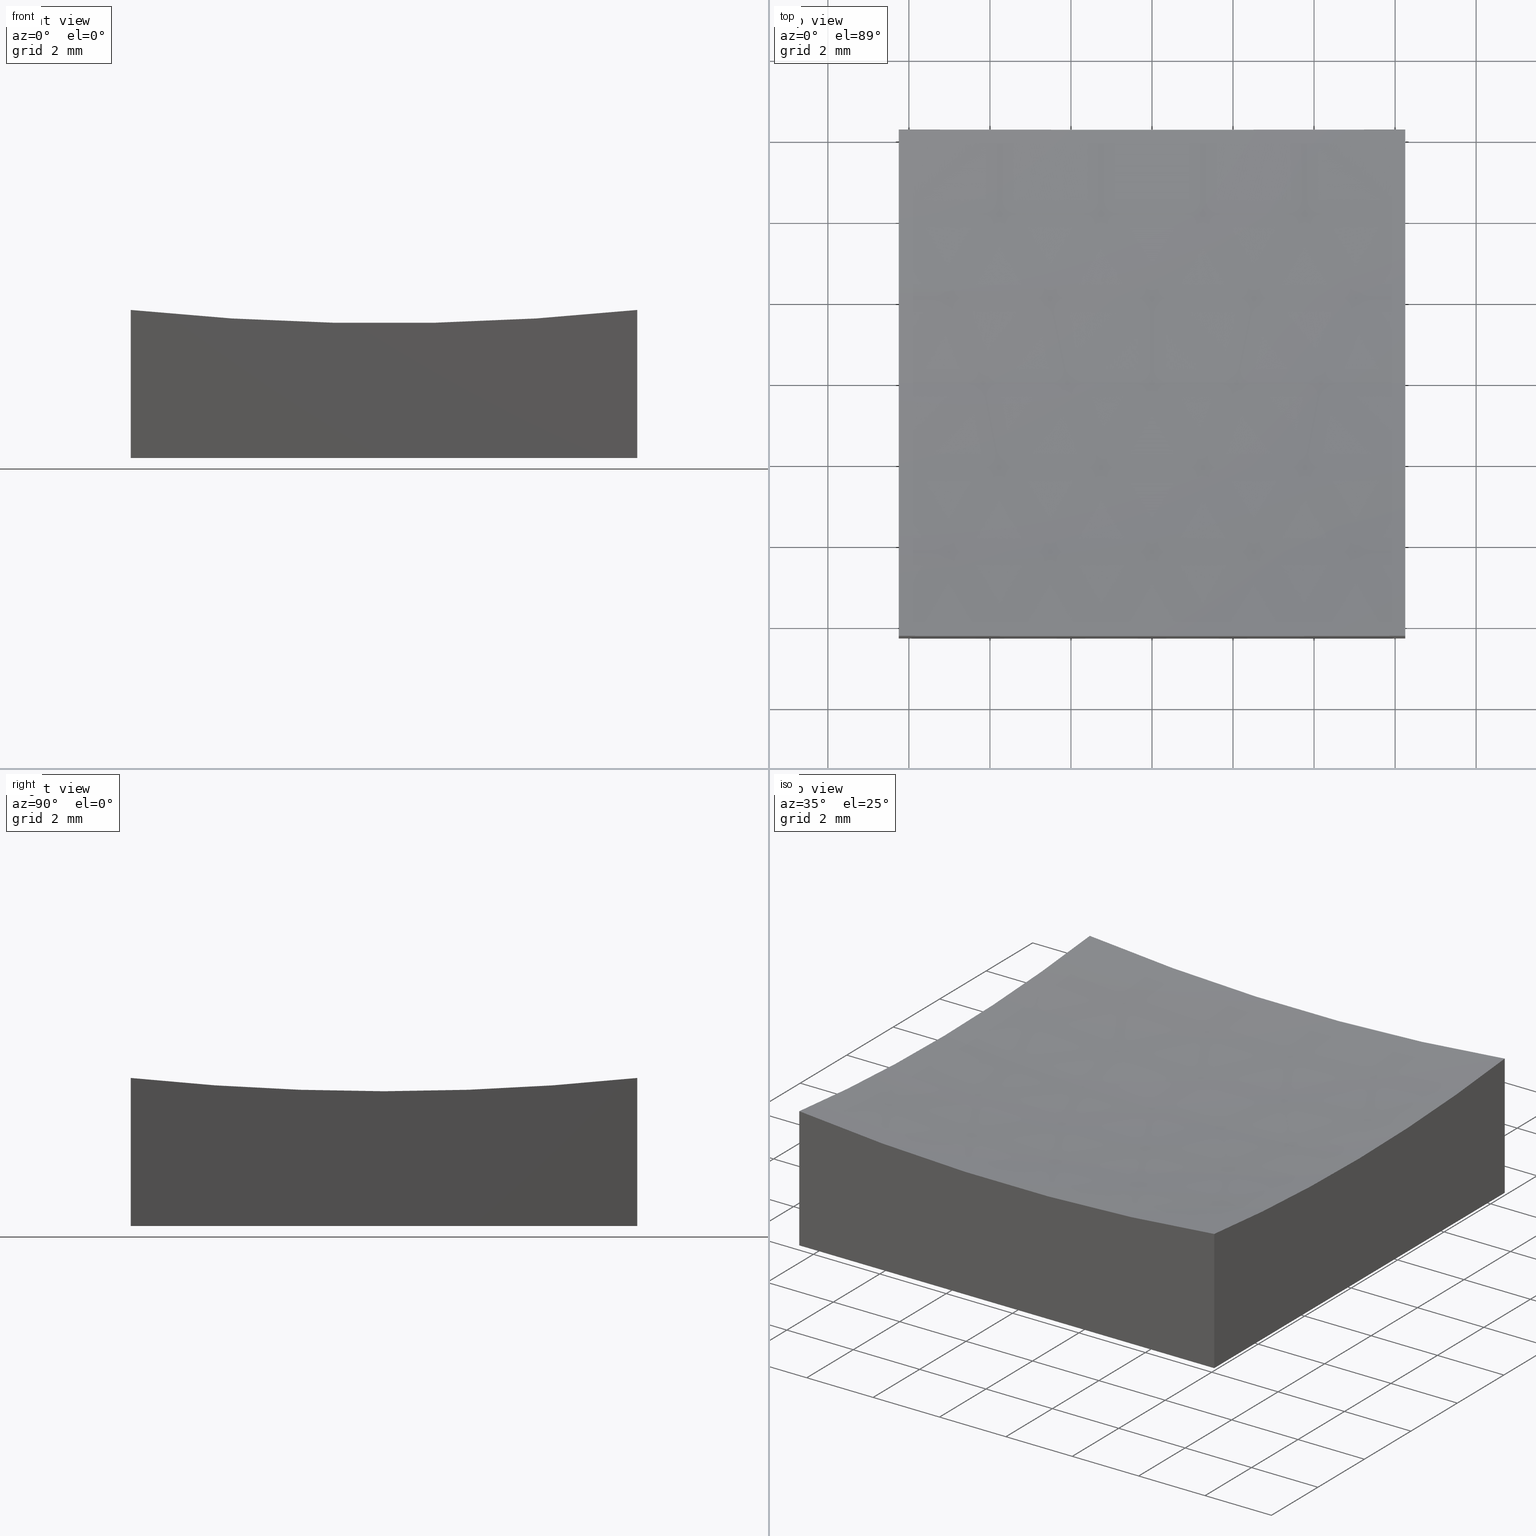
[diagram: canonical four-view strip — front | top / right | iso, engineering-drawing reading convention]
A machine part, canonical four-view strip (front | top / right | iso — engineering-drawing reading convention). The complete STEP part file that produces these views, byte-faithful:
ISO-10303-21;
HEADER;
FILE_DESCRIPTION (( 'STEP AP214' ),
    '1' );
FILE_NAME ('270015.STEP',
    '2020-06-01T08:44:16',
    ( '' ),
    ( '' ),
    'SwSTEP 2.0',
    'SolidWorks 2019',
    '' );
FILE_SCHEMA (( 'AUTOMOTIVE_DESIGN' ));
ENDSEC;

DATA;
#1 = CIRCLE ( 'NONE', #219, 59.67359131140005246 ) ;
#2 = EDGE_LOOP ( 'NONE', ( #160, #250, #238, #101 ) ) ;
#3 = ORIENTED_EDGE ( 'NONE', *, *, #176, .T. ) ;
#4 = ORIENTED_EDGE ( 'NONE', *, *, #155, .T. ) ;
#5 = AXIS2_PLACEMENT_3D ( 'NONE', #159, #236, #40 ) ;
#6 = ORIENTED_EDGE ( 'NONE', *, *, #135, .T. ) ;
#7 = ORIENTED_EDGE ( 'NONE', *, *, #57, .T. ) ;
#8 = FILL_AREA_STYLE ('',( #28 ) ) ;
#9 = DIRECTION ( 'NONE',  ( 1.000000000000000000, 0.0000000000000000000, 0.0000000000000000000 ) ) ;
#10 = VECTOR ( 'NONE', #195, 1000.000000000000000 ) ;
#11 = CARTESIAN_POINT ( 'NONE',  ( 6.250000000000000000, 6.250000000000000888, 0.0000000000000000000 ) ) ;
#12 = DIRECTION ( 'NONE',  ( 1.000000000000000000, 0.0000000000000000000, 0.0000000000000000000 ) ) ;
#13 = CARTESIAN_POINT ( 'NONE',  ( 6.250000000000000000, 6.250000000000000888, 3.654612647653911139 ) ) ;
#14 =( NAMED_UNIT ( * ) PLANE_ANGLE_UNIT ( ) SI_UNIT ( $, .RADIAN. ) );
#15 = VECTOR ( 'NONE', #12, 1000.000000000000000 ) ;
#16 = EDGE_CURVE ( 'NONE', #191, #42, #246, .T. ) ;
#17 = CARTESIAN_POINT ( 'NONE',  ( -6.250000000000000000, 6.250000000000000888, 10.00000000000000000 ) ) ;
#18 = LINE ( 'NONE', #95, #10 ) ;
#19 = LINE ( 'NONE', #233, #109 ) ;
#20 = PLANE ( 'NONE',  #231 ) ;
#21 = AXIS2_PLACEMENT_3D ( 'NONE', #71, #120, #139 ) ;
#22 = EDGE_CURVE ( 'NONE', #191, #80, #25, .T. ) ;
#23 = ORIENTED_EDGE ( 'NONE', *, *, #205, .T. ) ;
#24 = ORIENTED_EDGE ( 'NONE', *, *, #196, .F. ) ;
#25 = CIRCLE ( 'NONE', #130, 59.67359131140005246 ) ;
#26 = EDGE_LOOP ( 'NONE', ( #116, #23, #215, #7, #6 ) ) ;
#27 = DIRECTION ( 'NONE',  ( 0.0000000000000000000, 1.000000000000000000, 0.0000000000000000000 ) ) ;
#28 = FILL_AREA_STYLE_COLOUR ( '', #53 ) ;
#29 = DIRECTION ( 'NONE',  ( 1.000000000000000000, 0.0000000000000000000, -0.0000000000000000000 ) ) ;
#30 = PRODUCT_DEFINITION_SHAPE ( 'NONE', 'NONE',  #85 ) ;
#31 = CARTESIAN_POINT ( 'NONE',  ( 0.0000000000000000000, 0.0000000000000000000, 0.0000000000000000000 ) ) ;
#32 =( NAMED_UNIT ( * ) PLANE_ANGLE_UNIT ( ) SI_UNIT ( $, .RADIAN. ) );
#33 = DIRECTION ( 'NONE',  ( 1.000000000000000000, 0.0000000000000000000, -0.0000000000000000000 ) ) ;
#34 = AXIS2_PLACEMENT_3D ( 'NONE', #193, #194, #114 ) ;
#35 = DIRECTION ( 'NONE',  ( 0.0000000000000000000, 0.0000000000000000000, 1.000000000000000000 ) ) ;
#36 = DIRECTION ( 'NONE',  ( -1.000000000000000000, 1.224646799147352961E-16, 0.0000000000000000000 ) ) ;
#37 = VECTOR ( 'NONE', #50, 1000.000000000000000 ) ;
#38 = PRODUCT_RELATED_PRODUCT_CATEGORY ( 'part', '', ( #144 ) ) ;
#39 = ORIENTED_EDGE ( 'NONE', *, *, #155, .F. ) ;
#40 = DIRECTION ( 'NONE',  ( 0.0000000000000000000, 0.0000000000000000000, 1.000000000000000000 ) ) ;
#41 = ORIENTED_EDGE ( 'NONE', *, *, #16, .F. ) ;
#42 = VERTEX_POINT ( 'NONE', #99 ) ;
#43 = VECTOR ( 'NONE', #142, 1000.000000000000000 ) ;
#44 = MECHANICAL_DESIGN_GEOMETRIC_PRESENTATION_REPRESENTATION (  '', ( #218 ), #107 ) ;
#45 = COLOUR_RGB ( '',1.000000000000000000, 1.000000000000000000, 1.000000000000000000 ) ;
#46 =( LENGTH_UNIT ( ) NAMED_UNIT ( * ) SI_UNIT ( .MILLI., .METRE. ) );
#47 = CARTESIAN_POINT ( 'NONE',  ( 6.250000000000000000, 0.0000000000000000000, 3.326408688599950647 ) ) ;
#48 =( NAMED_UNIT ( * ) SI_UNIT ( $, .STERADIAN. ) SOLID_ANGLE_UNIT ( ) );
#49 = ADVANCED_FACE ( 'NONE', ( #201 ), #207, .F. ) ;
#50 = DIRECTION ( 'NONE',  ( 0.0000000000000000000, -1.000000000000000000, 0.0000000000000000000 ) ) ;
#51 = CARTESIAN_POINT ( 'NONE',  ( -6.250000000000000000, 7.654042494670961551E-16, 3.326408688599950647 ) ) ;
#52 = CARTESIAN_POINT ( 'NONE',  ( -6.250000000000000000, -6.250000000000000888, 0.0000000000000000000 ) ) ;
#53 = COLOUR_RGB ( '',1.000000000000000000, 1.000000000000000000, 1.000000000000000000 ) ;
#54 = CARTESIAN_POINT ( 'NONE',  ( -6.250000000000000000, 6.250000000000000888, 3.654612647653911139 ) ) ;
#55 = CARTESIAN_POINT ( 'NONE',  ( 6.250000000000000000, -6.250000000000000888, 3.654612647653911139 ) ) ;
#56 = VECTOR ( 'NONE', #222, 1000.000000000000000 ) ;
#57 = EDGE_CURVE ( 'NONE', #178, #59, #138, .T. ) ;
#58 = DIRECTION ( 'NONE',  ( 0.0000000000000000000, 0.0000000000000000000, -1.000000000000000000 ) ) ;
#59 = VERTEX_POINT ( 'NONE', #169 ) ;
#60 = ORIENTED_EDGE ( 'NONE', *, *, #146, .F. ) ;
#61 = DIRECTION ( 'NONE',  ( 1.000000000000000000, 0.0000000000000000000, -0.0000000000000000000 ) ) ;
#62 = APPLICATION_PROTOCOL_DEFINITION ( 'draft international standard', 'automotive_design', 1998, #148 ) ;
#63 = PRESENTATION_LAYER_ASSIGNMENT (  '', '', ( #177 ) ) ;
#64 = DIRECTION ( 'NONE',  ( -0.0000000000000000000, 1.000000000000000000, 0.0000000000000000000 ) ) ;
#65 = ADVANCED_FACE ( 'NONE', ( #121 ), #164, .T. ) ;
#66 = PRODUCT_CONTEXT ( 'NONE', #148, 'mechanical' ) ;
#67 = UNCERTAINTY_MEASURE_WITH_UNIT (LENGTH_MEASURE( 1.000000000000000082E-05 ), #234, 'distance_accuracy_value', 'NONE');
#68 = CARTESIAN_POINT ( 'NONE',  ( 7.715274834628325378E-15, 0.0000000000000000000, 63.00000000000000000 ) ) ;
#69 =( LENGTH_UNIT ( ) NAMED_UNIT ( * ) SI_UNIT ( .MILLI., .METRE. ) );
#70 = CARTESIAN_POINT ( 'NONE',  ( 6.210401153283149838E-15, 0.0000000000000000000, 3.000000000000002665 ) ) ;
#71 = CARTESIAN_POINT ( 'NONE',  ( 7.715274834628325378E-15, 0.0000000000000000000, 63.00000000000000000 ) ) ;
#72 = LINE ( 'NONE', #140, #15 ) ;
#73 = DIRECTION ( 'NONE',  ( 0.0000000000000000000, 0.0000000000000000000, 1.000000000000000000 ) ) ;
#74 = DIRECTION ( 'NONE',  ( 0.0000000000000000000, -0.0000000000000000000, 1.000000000000000000 ) ) ;
#75 = DIRECTION ( 'NONE',  ( -0.0000000000000000000, 0.0000000000000000000, -1.000000000000000000 ) ) ;
#76 = SURFACE_SIDE_STYLE ('',( #97 ) ) ;
#77 = AXIS2_PLACEMENT_3D ( 'NONE', #184, #27, #103 ) ;
#78 = CIRCLE ( 'NONE', #21, 60.00000000000000000 ) ;
#79 = VERTEX_POINT ( 'NONE', #90 ) ;
#80 = VERTEX_POINT ( 'NONE', #47 ) ;
#81 = CIRCLE ( 'NONE', #226, 60.00000000000000000 ) ;
#82 = ORIENTED_EDGE ( 'NONE', *, *, #57, .F. ) ;
#83 = VERTEX_POINT ( 'NONE', #52 ) ;
#84 = ORIENTED_EDGE ( 'NONE', *, *, #240, .T. ) ;
#85 = PRODUCT_DEFINITION ( 'δ֪', '', #163, #217 ) ;
#86 =( GEOMETRIC_REPRESENTATION_CONTEXT ( 3 ) GLOBAL_UNCERTAINTY_ASSIGNED_CONTEXT ( ( #242 ) ) GLOBAL_UNIT_ASSIGNED_CONTEXT ( ( #69, #228, #48 ) ) REPRESENTATION_CONTEXT ( 'NONE', 'WORKASPACE' ) );
#87 = LINE ( 'NONE', #224, #37 ) ;
#88 = PRESENTATION_STYLE_ASSIGNMENT (( #204 ) ) ;
#89 = DIRECTION ( 'NONE',  ( 0.0000000000000000000, 0.0000000000000000000, -1.000000000000000000 ) ) ;
#90 = CARTESIAN_POINT ( 'NONE',  ( 6.250000000000000000, -6.250000000000000888, 0.0000000000000000000 ) ) ;
#91 = AXIS2_PLACEMENT_3D ( 'NONE', #206, #64, #209 ) ;
#92 = FACE_OUTER_BOUND ( 'NONE', #2, .T. ) ;
#93 = ORIENTED_EDGE ( 'NONE', *, *, #176, .F. ) ;
#94 = ADVANCED_FACE ( 'NONE', ( #245 ), #244, .F. ) ;
#95 = CARTESIAN_POINT ( 'NONE',  ( -6.250000000000000000, 6.250000000000000888, 0.0000000000000000000 ) ) ;
#96 = DIRECTION ( 'NONE',  ( -0.0000000000000000000, -0.0000000000000000000, -1.000000000000000000 ) ) ;
#97 = SURFACE_STYLE_FILL_AREA ( #147 ) ;
#98 = VERTEX_POINT ( 'NONE', #51 ) ;
#99 = CARTESIAN_POINT ( 'NONE',  ( -6.250000000000000000, -6.250000000000000888, 3.654612647653911139 ) ) ;
#100 = EDGE_LOOP ( 'NONE', ( #179, #4, #131, #41, #203 ) ) ;
#101 = ORIENTED_EDGE ( 'NONE', *, *, #110, .T. ) ;
#102 = EDGE_CURVE ( 'NONE', #42, #83, #124, .T. ) ;
#103 = DIRECTION ( 'NONE',  ( 0.0000000000000000000, -0.0000000000000000000, 1.000000000000000000 ) ) ;
#104 = LINE ( 'NONE', #166, #43 ) ;
#105 =( NAMED_UNIT ( * ) SI_UNIT ( $, .STERADIAN. ) SOLID_ANGLE_UNIT ( ) );
#106 = DIRECTION ( 'NONE',  ( 0.0000000000000000000, 1.000000000000000000, 0.0000000000000000000 ) ) ;
#107 =( GEOMETRIC_REPRESENTATION_CONTEXT ( 3 ) GLOBAL_UNCERTAINTY_ASSIGNED_CONTEXT ( ( #223 ) ) GLOBAL_UNIT_ASSIGNED_CONTEXT ( ( #46, #14, #165 ) ) REPRESENTATION_CONTEXT ( 'NONE', 'WORKASPACE' ) );
#108 = VERTEX_POINT ( 'NONE', #11 ) ;
#109 = VECTOR ( 'NONE', #96, 1000.000000000000000 ) ;
#110 = EDGE_CURVE ( 'NONE', #83, #79, #72, .T. ) ;
#111 = DIRECTION ( 'NONE',  ( 1.224646799147353207E-16, 1.000000000000000000, -1.057036347494339336E-32 ) ) ;
#112 = PLANE ( 'NONE',  #34 ) ;
#113 = CIRCLE ( 'NONE', #152, 59.67359131140005246 ) ;
#114 = DIRECTION ( 'NONE',  ( -0.0000000000000000000, 0.0000000000000000000, -1.000000000000000000 ) ) ;
#115 = APPLICATION_CONTEXT ( 'automotive_design' ) ;
#116 = ORIENTED_EDGE ( 'NONE', *, *, #102, .F. ) ;
#117 = EDGE_LOOP ( 'NONE', ( #39, #161, #84, #181, #172 ) ) ;
#118 = EDGE_CURVE ( 'NONE', #108, #79, #87, .T. ) ;
#119 = ORIENTED_EDGE ( 'NONE', *, *, #118, .T. ) ;
#120 = DIRECTION ( 'NONE',  ( 0.0000000000000000000, -1.000000000000000000, -0.0000000000000000000 ) ) ;
#121 = FACE_OUTER_BOUND ( 'NONE', #241, .T. ) ;
#122 = CARTESIAN_POINT ( 'NONE',  ( 6.250000000000000000, 0.0000000000000000000, 63.00000000000000000 ) ) ;
#123 = CARTESIAN_POINT ( 'NONE',  ( -6.250000000000000000, 0.0000000000000000000, 63.00000000000000000 ) ) ;
#124 = LINE ( 'NONE', #247, #235 ) ;
#125 = DIRECTION ( 'NONE',  ( 0.0000000000000000000, 0.0000000000000000000, -1.000000000000000000 ) ) ;
#126 = EDGE_CURVE ( 'NONE', #98, #178, #113, .T. ) ;
#127 = PRESENTATION_LAYER_ASSIGNMENT (  '', '', ( #218 ) ) ;
#128 = AXIS2_PLACEMENT_3D ( 'NONE', #122, #33, #183 ) ;
#129 = FACE_OUTER_BOUND ( 'NONE', #214, .T. ) ;
#130 = AXIS2_PLACEMENT_3D ( 'NONE', #199, #61, #58 ) ;
#131 = ORIENTED_EDGE ( 'NONE', *, *, #205, .F. ) ;
#132 = EDGE_CURVE ( 'NONE', #191, #79, #104, .T. ) ;
#133 = VERTEX_POINT ( 'NONE', #70 ) ;
#134 = ORIENTED_EDGE ( 'NONE', *, *, #240, .F. ) ;
#135 = EDGE_CURVE ( 'NONE', #59, #83, #227, .T. ) ;
#136 = ORIENTED_EDGE ( 'NONE', *, *, #110, .F. ) ;
#137 = DIRECTION ( 'NONE',  ( -1.000000000000000000, 0.0000000000000000000, -0.0000000000000000000 ) ) ;
#138 = LINE ( 'NONE', #220, #56 ) ;
#139 = DIRECTION ( 'NONE',  ( 0.0000000000000000000, 0.0000000000000000000, -1.000000000000000000 ) ) ;
#140 = CARTESIAN_POINT ( 'NONE',  ( -6.250000000000000000, -6.250000000000000888, 0.0000000000000000000 ) ) ;
#141 = AXIS2_PLACEMENT_3D ( 'NONE', #212, #251, #35 ) ;
#142 = DIRECTION ( 'NONE',  ( -0.0000000000000000000, -0.0000000000000000000, -1.000000000000000000 ) ) ;
#143 = SURFACE_SIDE_STYLE ('',( #248 ) ) ;
#144 = PRODUCT ( '270015', '270015', '', ( #66 ) ) ;
#145 = DIRECTION ( 'NONE',  ( -0.0000000000000000000, 1.000000000000000000, 0.0000000000000000000 ) ) ;
#146 = EDGE_CURVE ( 'NONE', #239, #178, #216, .T. ) ;
#147 = FILL_AREA_STYLE ('',( #151 ) ) ;
#148 = APPLICATION_CONTEXT ( 'automotive_design' ) ;
#149 = MECHANICAL_DESIGN_GEOMETRIC_PRESENTATION_REPRESENTATION (  '', ( #177 ), #243 ) ;
#150 = DIRECTION ( 'NONE',  ( 1.000000000000000000, 0.0000000000000000000, -0.0000000000000000000 ) ) ;
#151 = FILL_AREA_STYLE_COLOUR ( '', #45 ) ;
#152 = AXIS2_PLACEMENT_3D ( 'NONE', #123, #29, #89 ) ;
#153 = CIRCLE ( 'NONE', #128, 59.67359131140005246 ) ;
#154 = ADVANCED_BREP_SHAPE_REPRESENTATION ( '270015', ( #200, #211 ), #86 ) ;
#155 = EDGE_CURVE ( 'NONE', #133, #98, #81, .T. ) ;
#156 = ORIENTED_EDGE ( 'NONE', *, *, #118, .F. ) ;
#157 = EDGE_LOOP ( 'NONE', ( #182, #119, #136, #213 ) ) ;
#158 = ADVANCED_FACE ( 'NONE', ( #174 ), #232, .F. ) ;
#159 = CARTESIAN_POINT ( 'NONE',  ( 7.715274834628325378E-15, -6.250000000000000888, 63.00000000000000000 ) ) ;
#160 = ORIENTED_EDGE ( 'NONE', *, *, #132, .F. ) ;
#161 = ORIENTED_EDGE ( 'NONE', *, *, #249, .T. ) ;
#162 = APPLICATION_PROTOCOL_DEFINITION ( 'draft international standard', 'automotive_design', 1998, #115 ) ;
#163 = PRODUCT_DEFINITION_FORMATION_WITH_SPECIFIED_SOURCE ( '�κ�', '', #144, .NOT_KNOWN. ) ;
#164 = PLANE ( 'NONE',  #77 ) ;
#165 =( NAMED_UNIT ( * ) SI_UNIT ( $, .STERADIAN. ) SOLID_ANGLE_UNIT ( ) );
#166 = CARTESIAN_POINT ( 'NONE',  ( 6.250000000000000000, -6.250000000000000888, 10.00000000000000000 ) ) ;
#167 = DIRECTION ( 'NONE',  ( 1.000000000000000000, 0.0000000000000000000, -0.0000000000000000000 ) ) ;
#168 = AXIS2_PLACEMENT_3D ( 'NONE', #68, #145, #9 ) ;
#169 = CARTESIAN_POINT ( 'NONE',  ( -6.250000000000000000, 6.250000000000000888, 0.0000000000000000000 ) ) ;
#170 = PLANE ( 'NONE',  #190 ) ;
#171 = SHAPE_DEFINITION_REPRESENTATION ( #30, #154 ) ;
#172 = ORIENTED_EDGE ( 'NONE', *, *, #126, .F. ) ;
#173 = CARTESIAN_POINT ( 'NONE',  ( 7.715274834628325378E-15, 0.0000000000000000000, 63.00000000000000000 ) ) ;
#174 = FACE_OUTER_BOUND ( 'NONE', #26, .T. ) ;
#175 = PRESENTATION_STYLE_ASSIGNMENT (( #229 ) ) ;
#176 = EDGE_CURVE ( 'NONE', #239, #108, #19, .T. ) ;
#177 = STYLED_ITEM ( 'NONE', ( #175 ), #200 ) ;
#178 = VERTEX_POINT ( 'NONE', #54 ) ;
#179 = ORIENTED_EDGE ( 'NONE', *, *, #249, .F. ) ;
#180 = AXIS2_PLACEMENT_3D ( 'NONE', #17, #150, #75 ) ;
#181 = ORIENTED_EDGE ( 'NONE', *, *, #146, .T. ) ;
#182 = ORIENTED_EDGE ( 'NONE', *, *, #196, .T. ) ;
#183 = DIRECTION ( 'NONE',  ( 0.0000000000000000000, 0.0000000000000000000, -1.000000000000000000 ) ) ;
#184 = CARTESIAN_POINT ( 'NONE',  ( -6.250000000000000000, 6.250000000000000888, 10.00000000000000000 ) ) ;
#185 = ADVANCED_FACE ( 'NONE', ( #129 ), #112, .T. ) ;
#186 = DIRECTION ( 'NONE',  ( -0.0000000000000000000, -0.0000000000000000000, -1.000000000000000000 ) ) ;
#187 = CARTESIAN_POINT ( 'NONE',  ( 0.0000000000000000000, 0.0000000000000000000, 0.0000000000000000000 ) ) ;
#188 = DIRECTION ( 'NONE',  ( 0.0000000000000000000, 0.0000000000000000000, -1.000000000000000000 ) ) ;
#189 = VECTOR ( 'NONE', #192, 1000.000000000000000 ) ;
#190 = AXIS2_PLACEMENT_3D ( 'NONE', #210, #106, #74 ) ;
#191 = VERTEX_POINT ( 'NONE', #55 ) ;
#192 = DIRECTION ( 'NONE',  ( 0.0000000000000000000, -1.000000000000000000, 0.0000000000000000000 ) ) ;
#193 = CARTESIAN_POINT ( 'NONE',  ( 6.250000000000000000, 6.250000000000000888, 10.00000000000000000 ) ) ;
#194 = DIRECTION ( 'NONE',  ( 1.000000000000000000, 0.0000000000000000000, -0.0000000000000000000 ) ) ;
#195 = DIRECTION ( 'NONE',  ( 1.000000000000000000, 0.0000000000000000000, 0.0000000000000000000 ) ) ;
#196 = EDGE_CURVE ( 'NONE', #59, #108, #18, .T. ) ;
#197 = FACE_OUTER_BOUND ( 'NONE', #157, .T. ) ;
#198 = ORIENTED_EDGE ( 'NONE', *, *, #132, .T. ) ;
#199 = CARTESIAN_POINT ( 'NONE',  ( 6.250000000000000000, 0.0000000000000000000, 63.00000000000000000 ) ) ;
#200 = MANIFOLD_SOLID_BREP ( '�г�-��ת2', #202 ) ;
#201 = FACE_OUTER_BOUND ( 'NONE', #100, .T. ) ;
#202 = CLOSED_SHELL ( 'NONE', ( #49, #65, #158, #221, #185, #230, #94 ) ) ;
#203 = ORIENTED_EDGE ( 'NONE', *, *, #22, .T. ) ;
#204 = SURFACE_STYLE_USAGE ( .BOTH. , #143 ) ;
#205 = EDGE_CURVE ( 'NONE', #42, #98, #1, .T. ) ;
#206 = CARTESIAN_POINT ( 'NONE',  ( 7.715274834628325378E-15, 0.0000000000000000000, 63.00000000000000000 ) ) ;
#207 = SPHERICAL_SURFACE ( 'NONE', #168, 60.00000000000000000 ) ;
#208 = CARTESIAN_POINT ( 'NONE',  ( -6.250000000000000000, 0.0000000000000000000, 63.00000000000000000 ) ) ;
#209 = DIRECTION ( 'NONE',  ( 1.000000000000000000, 0.0000000000000000000, 0.0000000000000000000 ) ) ;
#210 = CARTESIAN_POINT ( 'NONE',  ( -6.250000000000000000, -6.250000000000000888, 10.00000000000000000 ) ) ;
#211 = AXIS2_PLACEMENT_3D ( 'NONE', #31, #73, #225 ) ;
#212 = CARTESIAN_POINT ( 'NONE',  ( 7.715274834628325378E-15, 6.250000000000000888, 63.00000000000000000 ) ) ;
#213 = ORIENTED_EDGE ( 'NONE', *, *, #135, .F. ) ;
#214 = EDGE_LOOP ( 'NONE', ( #237, #198, #156, #93, #134 ) ) ;
#215 = ORIENTED_EDGE ( 'NONE', *, *, #126, .T. ) ;
#216 = CIRCLE ( 'NONE', #141, 59.67359131140004536 ) ;
#217 = PRODUCT_DEFINITION_CONTEXT ( 'detailed design', #115, 'design' ) ;
#218 = STYLED_ITEM ( 'NONE', ( #88 ), #154 ) ;
#219 = AXIS2_PLACEMENT_3D ( 'NONE', #208, #167, #125 ) ;
#220 = CARTESIAN_POINT ( 'NONE',  ( -6.250000000000000000, 6.250000000000000888, 10.00000000000000000 ) ) ;
#221 = ADVANCED_FACE ( 'NONE', ( #92 ), #170, .F. ) ;
#222 = DIRECTION ( 'NONE',  ( -0.0000000000000000000, -0.0000000000000000000, -1.000000000000000000 ) ) ;
#223 = UNCERTAINTY_MEASURE_WITH_UNIT (LENGTH_MEASURE( 1.000000000000000082E-05 ), #46, 'distance_accuracy_value', 'NONE');
#224 = CARTESIAN_POINT ( 'NONE',  ( 6.250000000000000000, 6.250000000000000888, 0.0000000000000000000 ) ) ;
#225 = DIRECTION ( 'NONE',  ( 1.000000000000000000, 0.0000000000000000000, 0.0000000000000000000 ) ) ;
#226 = AXIS2_PLACEMENT_3D ( 'NONE', #173, #111, #36 ) ;
#227 = LINE ( 'NONE', #252, #189 ) ;
#228 =( NAMED_UNIT ( * ) PLANE_ANGLE_UNIT ( ) SI_UNIT ( $, .RADIAN. ) );
#229 = SURFACE_STYLE_USAGE ( .BOTH. , #76 ) ;
#230 = ADVANCED_FACE ( 'NONE', ( #197 ), #20, .T. ) ;
#231 = AXIS2_PLACEMENT_3D ( 'NONE', #187, #188, #137 ) ;
#232 = PLANE ( 'NONE',  #180 ) ;
#233 = CARTESIAN_POINT ( 'NONE',  ( 6.250000000000000000, 6.250000000000000888, 10.00000000000000000 ) ) ;
#234 =( LENGTH_UNIT ( ) NAMED_UNIT ( * ) SI_UNIT ( .MILLI., .METRE. ) );
#235 = VECTOR ( 'NONE', #186, 1000.000000000000000 ) ;
#236 = DIRECTION ( 'NONE',  ( 0.0000000000000000000, 1.000000000000000000, 0.0000000000000000000 ) ) ;
#237 = ORIENTED_EDGE ( 'NONE', *, *, #22, .F. ) ;
#238 = ORIENTED_EDGE ( 'NONE', *, *, #102, .T. ) ;
#239 = VERTEX_POINT ( 'NONE', #13 ) ;
#240 = EDGE_CURVE ( 'NONE', #80, #239, #153, .T. ) ;
#241 = EDGE_LOOP ( 'NONE', ( #60, #3, #24, #82 ) ) ;
#242 = UNCERTAINTY_MEASURE_WITH_UNIT (LENGTH_MEASURE( 1.000000000000000082E-05 ), #69, 'distance_accuracy_value', 'NONE');
#243 =( GEOMETRIC_REPRESENTATION_CONTEXT ( 3 ) GLOBAL_UNCERTAINTY_ASSIGNED_CONTEXT ( ( #67 ) ) GLOBAL_UNIT_ASSIGNED_CONTEXT ( ( #234, #32, #105 ) ) REPRESENTATION_CONTEXT ( 'NONE', 'WORKASPACE' ) );
#244 = SPHERICAL_SURFACE ( 'NONE', #91, 60.00000000000000000 ) ;
#245 = FACE_OUTER_BOUND ( 'NONE', #117, .T. ) ;
#246 = CIRCLE ( 'NONE', #5, 59.67359131140004536 ) ;
#247 = CARTESIAN_POINT ( 'NONE',  ( -6.250000000000000000, -6.250000000000000888, 10.00000000000000000 ) ) ;
#248 = SURFACE_STYLE_FILL_AREA ( #8 ) ;
#249 = EDGE_CURVE ( 'NONE', #133, #80, #78, .T. ) ;
#250 = ORIENTED_EDGE ( 'NONE', *, *, #16, .T. ) ;
#251 = DIRECTION ( 'NONE',  ( 0.0000000000000000000, 1.000000000000000000, 0.0000000000000000000 ) ) ;
#252 = CARTESIAN_POINT ( 'NONE',  ( -6.250000000000000000, 6.250000000000000888, 0.0000000000000000000 ) ) ;
ENDSEC;
END-ISO-10303-21;
